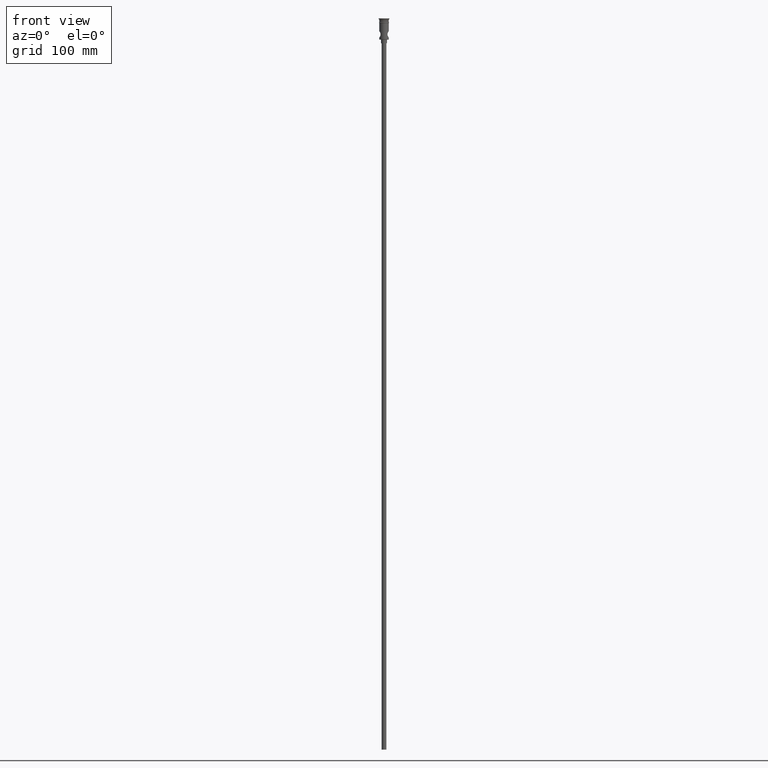
[diagram: clean part render]
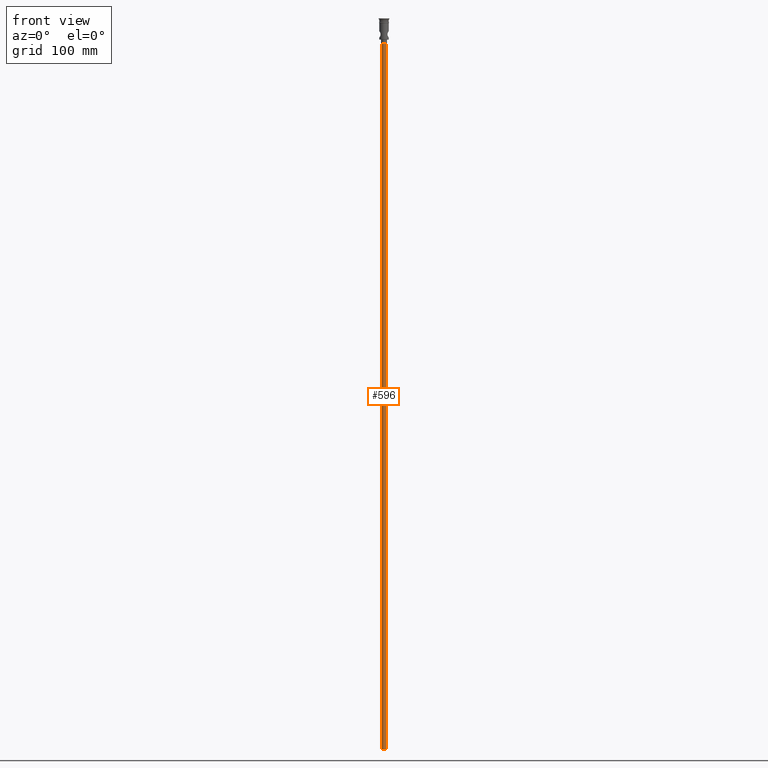
[diagram: same view with one face highlighted and labeled with its STEP entity id]
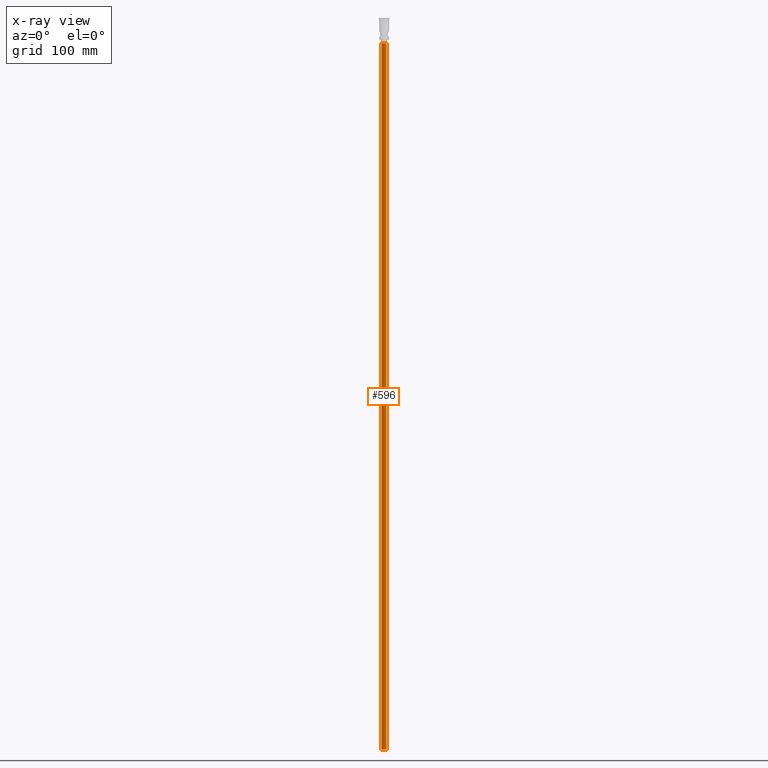
[diagram: x-ray of the same camera — body ghosted, the highlighted face saturated]
A machine part, front view. The second image highlights one B-rep face of the part: STEP entity #596.
The next image is the same camera in x-ray: the body ghosted, the highlighted face saturated — about 0% of this face is hidden behind the body in this view.
In plain terms, the highlighted cylindrical surface (edge-blend (fillet) strip) has radius 2 mm, axis along (-0, -0, 1).
Its self-contained STEP definition (entity closure, byte-faithful):
#5 = VERTEX_POINT ( 'NONE', #657 ) ;
#31 = CIRCLE ( 'NONE', #808, 2.000000000000000000 ) ;
#50 = CARTESIAN_POINT ( 'NONE',  ( 0.000000000000000000, 0.000000000000000000, -618.0000000000000000 ) ) ;
#87 = DIRECTION ( 'NONE',  ( -0.000000000000000000, -0.000000000000000000, 1.000000000000000000 ) ) ;
#88 = ORIENTED_EDGE ( 'NONE', *, *, #986, .F. ) ;
#181 = VECTOR ( 'NONE', #1091, 1000.000000000000000 ) ;
#214 = VERTEX_POINT ( 'NONE', #1313 ) ;
#221 = CARTESIAN_POINT ( 'NONE',  ( -2.000000000000000000, 2.449293598294706414E-16, -20.99999999999999645 ) ) ;
#280 = CARTESIAN_POINT ( 'NONE',  ( 0.000000000000000000, 0.000000000000000000, -618.0000000000000000 ) ) ;
#301 = AXIS2_PLACEMENT_3D ( 'NONE', #280, #1071, #1284 ) ;
#441 = AXIS2_PLACEMENT_3D ( 'NONE', #50, #1045, #718 ) ;
#447 = EDGE_CURVE ( 'NONE', #214, #498, #31, .T. ) ;
#474 = CYLINDRICAL_SURFACE ( 'NONE', #441, 2.000000000000000000 ) ;
#498 = VERTEX_POINT ( 'NONE', #221 ) ;
#530 = CIRCLE ( 'NONE', #301, 2.000000000000000000 ) ;
#539 = CARTESIAN_POINT ( 'NONE',  ( -2.000000000000000000, 2.449293598294706414E-16, -618.0000000000000000 ) ) ;
#562 = EDGE_CURVE ( 'NONE', #817, #5, #530, .T. ) ;
#569 = ORIENTED_EDGE ( 'NONE', *, *, #447, .T. ) ;
#596 = ADVANCED_FACE ( 'NONE', ( #726 ), #474, .T. ) ;
#649 = CARTESIAN_POINT ( 'NONE',  ( 0.000000000000000000, 0.000000000000000000, -20.99999999999999645 ) ) ;
#657 = CARTESIAN_POINT ( 'NONE',  ( -2.000000000000000000, 2.449293598294706414E-16, -618.0000000000000000 ) ) ;
#679 = ORIENTED_EDGE ( 'NONE', *, *, #684, .T. ) ;
#684 = EDGE_CURVE ( 'NONE', #817, #214, #886, .T. ) ;
#718 = DIRECTION ( 'NONE',  ( 1.000000000000000000, 0.000000000000000000, 0.000000000000000000 ) ) ;
#726 = FACE_OUTER_BOUND ( 'NONE', #1118, .T. ) ;
#771 = CARTESIAN_POINT ( 'NONE',  ( 2.000000000000000000, 0.000000000000000000, -618.0000000000000000 ) ) ;
#808 = AXIS2_PLACEMENT_3D ( 'NONE', #649, #984, #1434 ) ;
#817 = VERTEX_POINT ( 'NONE', #1144 ) ;
#886 = LINE ( 'NONE', #771, #1360 ) ;
#984 = DIRECTION ( 'NONE',  ( 0.000000000000000000, 0.000000000000000000, -1.000000000000000000 ) ) ;
#986 = EDGE_CURVE ( 'NONE', #5, #498, #1280, .T. ) ;
#1045 = DIRECTION ( 'NONE',  ( -0.000000000000000000, -0.000000000000000000, 1.000000000000000000 ) ) ;
#1071 = DIRECTION ( 'NONE',  ( 0.000000000000000000, 0.000000000000000000, -1.000000000000000000 ) ) ;
#1091 = DIRECTION ( 'NONE',  ( -0.000000000000000000, -0.000000000000000000, 1.000000000000000000 ) ) ;
#1118 = EDGE_LOOP ( 'NONE', ( #88, #1164, #679, #569 ) ) ;
#1144 = CARTESIAN_POINT ( 'NONE',  ( 2.000000000000000000, 0.000000000000000000, -618.0000000000000000 ) ) ;
#1164 = ORIENTED_EDGE ( 'NONE', *, *, #562, .F. ) ;
#1280 = LINE ( 'NONE', #539, #181 ) ;
#1284 = DIRECTION ( 'NONE',  ( -1.000000000000000000, 0.000000000000000000, 0.000000000000000000 ) ) ;
#1313 = CARTESIAN_POINT ( 'NONE',  ( 2.000000000000000000, 0.000000000000000000, -20.99999999999999645 ) ) ;
#1360 = VECTOR ( 'NONE', #87, 1000.000000000000000 ) ;
#1434 = DIRECTION ( 'NONE',  ( -1.000000000000000000, 0.000000000000000000, 0.000000000000000000 ) ) ;